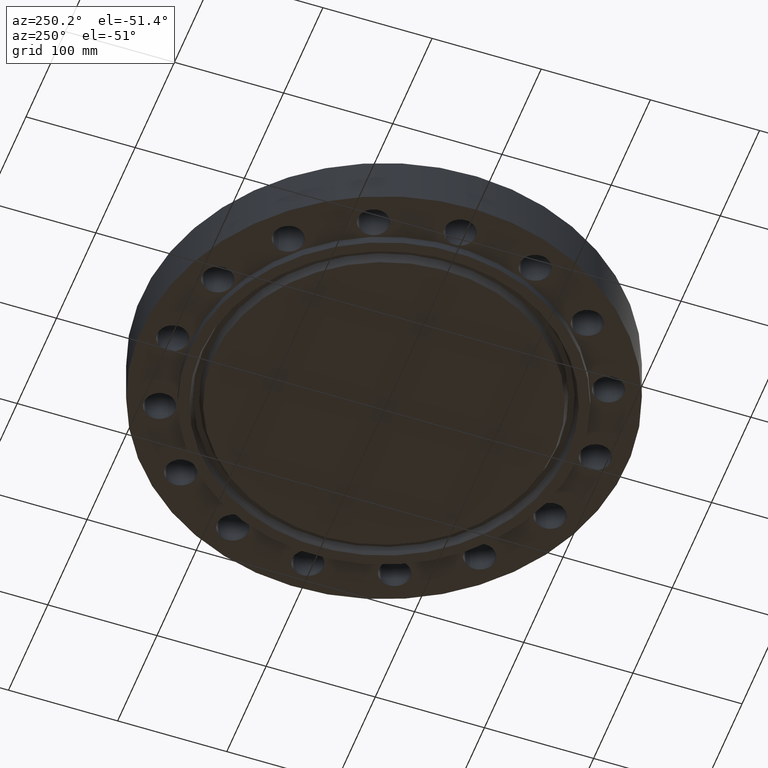
[diagram: clean part render]
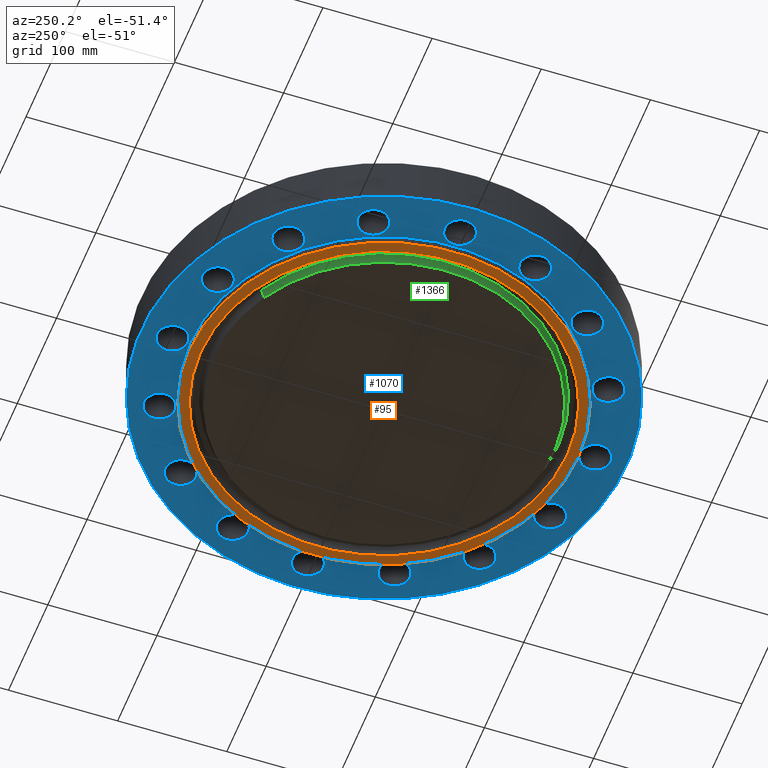
[diagram: same view with three faces highlighted in distinct colors, each labeled with its STEP entity id]
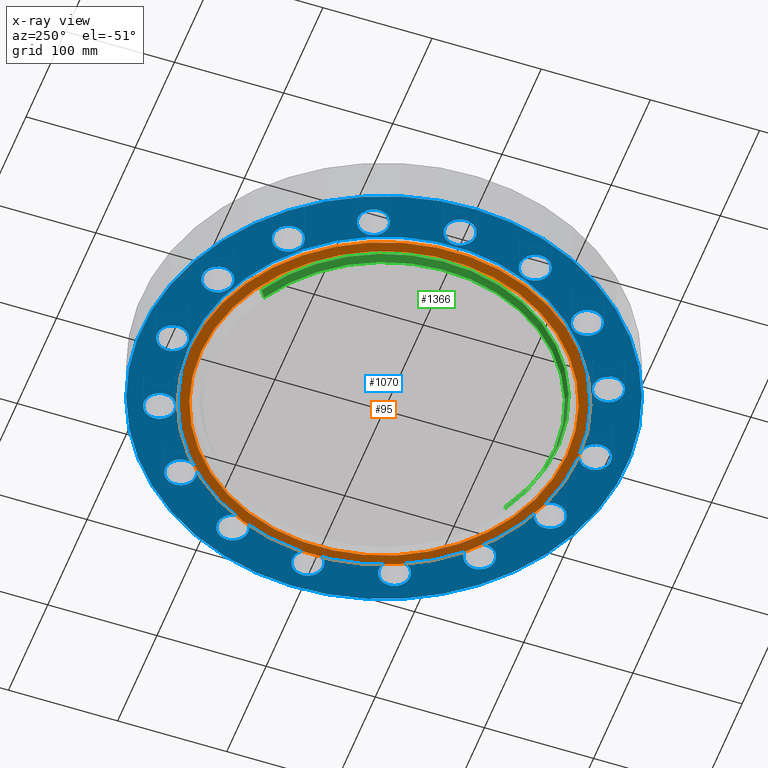
[diagram: x-ray of the same camera — body ghosted, the three highlighted faces saturated]
A machine part, auxiliary view with three faces highlighted in distinct colors.
The next image is the same camera in x-ray (body ghosted, the three faces saturated) — at least one of them is partly hidden behind the body in this view.
Their STEP definitions:

[orange] entity #95 — the highlighted planar face has unit normal (0, 0, -1).
#38=AXIS2_PLACEMENT_3D('Plane Axis2P3D',#35,#36,#37) ;
#61=AXIS2_PLACEMENT_3D('Circle Axis2P3D',#59,#60,$) ;
#70=AXIS2_PLACEMENT_3D('Circle Axis2P3D',#68,#69,$) ;
#79=AXIS2_PLACEMENT_3D('Circle Axis2P3D',#77,#78,$) ;
#88=AXIS2_PLACEMENT_3D('Circle Axis2P3D',#86,#87,$) ;
#35=CARTESIAN_POINT('Axis2P3D Location',(0.,0.,-0.312500000001)) ;
#59=CARTESIAN_POINT('Axis2P3D Location',(0.,0.,-0.312500000001)) ;
#63=CARTESIAN_POINT('Vertex',(3.35597877024,6.14307793326,-0.312500000001)) ;
#65=CARTESIAN_POINT('Vertex',(-3.35597877024,-6.14307793326,-0.312500000001)) ;
#68=CARTESIAN_POINT('Axis2P3D Location',(0.,0.,-0.312500000001)) ;
#77=CARTESIAN_POINT('Axis2P3D Location',(-8.39223703654E-016,-1.1189649382E-015,-0.312500000001)) ;
#81=CARTESIAN_POINT('Vertex',(3.16871515486,-5.80029418458,-0.312500000001)) ;
#83=CARTESIAN_POINT('Vertex',(-3.16871515486,5.80029418458,-0.312500000001)) ;
#86=CARTESIAN_POINT('Axis2P3D Location',(-2.79741234551E-016,-5.59482469102E-016,-0.312500000001)) ;
#36=DIRECTION('Axis2P3D Direction',(0.,0.,-0.0393700787402)) ;
#37=DIRECTION('Axis2P3D XDirection',(0.0393700787402,0.,0.)) ;
#60=DIRECTION('Axis2P3D Direction',(0.,0.,-0.0393700787402)) ;
#69=DIRECTION('Axis2P3D Direction',(0.,0.,-0.0393700787402)) ;
#78=DIRECTION('Axis2P3D Direction',(0.,0.,-0.0393700787402)) ;
#87=DIRECTION('Axis2P3D Direction',(0.,0.,-0.0393700787402)) ;
#74=ORIENTED_EDGE('',*,*,#67,.T.) ;
#75=ORIENTED_EDGE('',*,*,#72,.T.) ;
#92=ORIENTED_EDGE('',*,*,#85,.F.) ;
#93=ORIENTED_EDGE('',*,*,#90,.F.) ;
#94=FACE_BOUND('',#91,.T.) ;
#95=ADVANCED_FACE('PartBody',(#76,#94),#39,.T.) ;
#62=CIRCLE('generated circle',#61,7.00000000003) ;
#71=CIRCLE('generated circle',#70,7.00000000003) ;
#80=CIRCLE('generated circle',#79,6.60940000003) ;
#89=CIRCLE('generated circle',#88,6.60940000003) ;
#67=EDGE_CURVE('',#64,#66,#62,.T.) ;
#72=EDGE_CURVE('',#66,#64,#71,.T.) ;
#85=EDGE_CURVE('',#82,#84,#80,.T.) ;
#90=EDGE_CURVE('',#84,#82,#89,.T.) ;
#73=EDGE_LOOP('',(#74,#75)) ;
#91=EDGE_LOOP('',(#92,#93)) ;
#76=FACE_OUTER_BOUND('',#73,.T.) ;
#39=PLANE('',#38) ;
#64=VERTEX_POINT('',#63) ;
#66=VERTEX_POINT('',#65) ;
#82=VERTEX_POINT('',#81) ;
#84=VERTEX_POINT('',#83) ;

[blue] entity #1070 — the highlighted planar face has unit normal (0, 0, -1).
#112=AXIS2_PLACEMENT_3D('Circle Axis2P3D',#110,#111,$) ;
#138=AXIS2_PLACEMENT_3D('Circle Axis2P3D',#136,#137,$) ;
#169=AXIS2_PLACEMENT_3D('Circle Axis2P3D',#167,#168,$) ;
#195=AXIS2_PLACEMENT_3D('Circle Axis2P3D',#193,#194,$) ;
#226=AXIS2_PLACEMENT_3D('Circle Axis2P3D',#224,#225,$) ;
#252=AXIS2_PLACEMENT_3D('Circle Axis2P3D',#250,#251,$) ;
#283=AXIS2_PLACEMENT_3D('Circle Axis2P3D',#281,#282,$) ;
#309=AXIS2_PLACEMENT_3D('Circle Axis2P3D',#307,#308,$) ;
#340=AXIS2_PLACEMENT_3D('Circle Axis2P3D',#338,#339,$) ;
#366=AXIS2_PLACEMENT_3D('Circle Axis2P3D',#364,#365,$) ;
#397=AXIS2_PLACEMENT_3D('Circle Axis2P3D',#395,#396,$) ;
#423=AXIS2_PLACEMENT_3D('Circle Axis2P3D',#421,#422,$) ;
#454=AXIS2_PLACEMENT_3D('Circle Axis2P3D',#452,#453,$) ;
#480=AXIS2_PLACEMENT_3D('Circle Axis2P3D',#478,#479,$) ;
#511=AXIS2_PLACEMENT_3D('Circle Axis2P3D',#509,#510,$) ;
#537=AXIS2_PLACEMENT_3D('Circle Axis2P3D',#535,#536,$) ;
#568=AXIS2_PLACEMENT_3D('Circle Axis2P3D',#566,#567,$) ;
#594=AXIS2_PLACEMENT_3D('Circle Axis2P3D',#592,#593,$) ;
#625=AXIS2_PLACEMENT_3D('Circle Axis2P3D',#623,#624,$) ;
#651=AXIS2_PLACEMENT_3D('Circle Axis2P3D',#649,#650,$) ;
#682=AXIS2_PLACEMENT_3D('Circle Axis2P3D',#680,#681,$) ;
#708=AXIS2_PLACEMENT_3D('Circle Axis2P3D',#706,#707,$) ;
#739=AXIS2_PLACEMENT_3D('Circle Axis2P3D',#737,#738,$) ;
#765=AXIS2_PLACEMENT_3D('Circle Axis2P3D',#763,#764,$) ;
#796=AXIS2_PLACEMENT_3D('Circle Axis2P3D',#794,#795,$) ;
#822=AXIS2_PLACEMENT_3D('Circle Axis2P3D',#820,#821,$) ;
#853=AXIS2_PLACEMENT_3D('Circle Axis2P3D',#851,#852,$) ;
#879=AXIS2_PLACEMENT_3D('Circle Axis2P3D',#877,#878,$) ;
#910=AXIS2_PLACEMENT_3D('Circle Axis2P3D',#908,#909,$) ;
#936=AXIS2_PLACEMENT_3D('Circle Axis2P3D',#934,#935,$) ;
#954=AXIS2_PLACEMENT_3D('Plane Axis2P3D',#951,#952,#953) ;
#958=AXIS2_PLACEMENT_3D('Circle Axis2P3D',#956,#957,$) ;
#967=AXIS2_PLACEMENT_3D('Circle Axis2P3D',#965,#966,$) ;
#976=AXIS2_PLACEMENT_3D('Circle Axis2P3D',#974,#975,$) ;
#985=AXIS2_PLACEMENT_3D('Circle Axis2P3D',#983,#984,$) ;
#994=AXIS2_PLACEMENT_3D('Circle Axis2P3D',#992,#993,$) ;
#1003=AXIS2_PLACEMENT_3D('Circle Axis2P3D',#1001,#1002,$) ;
#105=CARTESIAN_POINT('Vertex',(3.26925609135,6.60847149573,0.)) ;
#110=CARTESIAN_POINT('Axis2P3D Location',(2.9179611718,7.04458143543,0.)) ;
#114=CARTESIAN_POINT('Vertex',(2.56666625224,7.48069137512,0.)) ;
#136=CARTESIAN_POINT('Axis2P3D Location',(2.9179611718,7.04458143543,0.)) ;
#162=CARTESIAN_POINT('Vertex',(-0.491446234661,-7.35652169841,0.)) ;
#167=CARTESIAN_POINT('Axis2P3D Location',(9.33793184354E-016,-7.62500000003,0.)) ;
#171=CARTESIAN_POINT('Vertex',(0.491446234661,-7.89347830165,0.)) ;
#193=CARTESIAN_POINT('Axis2P3D Location',(9.33793184354E-016,-7.62500000003,0.)) ;
#219=CARTESIAN_POINT('Vertex',(-2.36118185628,6.98460815954,0.)) ;
#224=CARTESIAN_POINT('Axis2P3D Location',(-2.9179611718,7.04458143543,0.)) ;
#228=CARTESIAN_POINT('Vertex',(-3.47474048731,7.10455471131,0.)) ;
#250=CARTESIAN_POINT('Axis2P3D Location',(-2.9179611718,7.04458143543,0.)) ;
#276=CARTESIAN_POINT('Vertex',(2.36118185628,-6.98460815954,0.)) ;
#281=CARTESIAN_POINT('Axis2P3D Location',(2.9179611718,-7.04458143543,0.)) ;
#285=CARTESIAN_POINT('Vertex',(3.47474048731,-7.10455471131,0.)) ;
#307=CARTESIAN_POINT('Axis2P3D Location',(2.9179611718,-7.04458143543,0.)) ;
#333=CARTESIAN_POINT('Vertex',(-4.85434141378,5.54935134401,0.)) ;
#338=CARTESIAN_POINT('Axis2P3D Location',(-5.39168920657,5.39168920657,0.)) ;
#342=CARTESIAN_POINT('Vertex',(-5.92903699936,5.23402706913,0.)) ;
#364=CARTESIAN_POINT('Axis2P3D Location',(-5.39168920657,5.39168920657,0.)) ;
#390=CARTESIAN_POINT('Vertex',(4.85434141378,-5.54935134401,0.)) ;
#395=CARTESIAN_POINT('Axis2P3D Location',(5.39168920657,-5.39168920657,0.)) ;
#399=CARTESIAN_POINT('Vertex',(5.92903699936,-5.23402706913,0.)) ;
#421=CARTESIAN_POINT('Axis2P3D Location',(5.39168920657,-5.39168920657,0.)) ;
#447=CARTESIAN_POINT('Vertex',(-6.60847149573,3.26925609135,-1.67844740731E-015)) ;
#452=CARTESIAN_POINT('Axis2P3D Location',(-7.04458143543,2.9179611718,-1.67844740731E-015)) ;
#456=CARTESIAN_POINT('Vertex',(-7.48069137512,2.56666625224,0.)) ;
#478=CARTESIAN_POINT('Axis2P3D Location',(-7.04458143543,2.9179611718,-1.67844740731E-015)) ;
#504=CARTESIAN_POINT('Vertex',(6.60847149573,-3.26925609135,0.)) ;
#509=CARTESIAN_POINT('Axis2P3D Location',(7.04458143543,-2.9179611718,0.)) ;
#513=CARTESIAN_POINT('Vertex',(7.48069137512,-2.56666625224,0.)) ;
#535=CARTESIAN_POINT('Axis2P3D Location',(7.04458143543,-2.9179611718,0.)) ;
#561=CARTESIAN_POINT('Vertex',(-7.35652169841,0.491446234661,0.)) ;
#566=CARTESIAN_POINT('Axis2P3D Location',(-7.62500000003,-2.81724838326E-016,0.)) ;
#570=CARTESIAN_POINT('Vertex',(-7.89347830165,-0.491446234661,0.)) ;
#592=CARTESIAN_POINT('Axis2P3D Location',(-7.62500000003,-2.81724838326E-016,0.)) ;
#618=CARTESIAN_POINT('Vertex',(7.35652169841,-0.491446234661,0.)) ;
#623=CARTESIAN_POINT('Axis2P3D Location',(7.62500000003,-6.52068346028E-016,0.)) ;
#627=CARTESIAN_POINT('Vertex',(7.89347830165,0.491446234661,0.)) ;
#649=CARTESIAN_POINT('Axis2P3D Location',(7.62500000003,-6.52068346028E-016,0.)) ;
#675=CARTESIAN_POINT('Vertex',(-6.98460815954,-2.36118185628,0.)) ;
#680=CARTESIAN_POINT('Axis2P3D Location',(-7.04458143543,-2.9179611718,0.)) ;
#684=CARTESIAN_POINT('Vertex',(-7.10455471131,-3.47474048731,0.)) ;
#706=CARTESIAN_POINT('Axis2P3D Location',(-7.04458143543,-2.9179611718,0.)) ;
#732=CARTESIAN_POINT('Vertex',(6.98460815954,2.36118185628,0.)) ;
#737=CARTESIAN_POINT('Axis2P3D Location',(7.04458143543,2.9179611718,0.)) ;
#741=CARTESIAN_POINT('Vertex',(7.10455471131,3.47474048731,0.)) ;
#763=CARTESIAN_POINT('Axis2P3D Location',(7.04458143543,2.9179611718,0.)) ;
#789=CARTESIAN_POINT('Vertex',(-5.54935134401,-4.85434141378,0.)) ;
#794=CARTESIAN_POINT('Axis2P3D Location',(-5.39168920657,-5.39168920657,0.)) ;
#798=CARTESIAN_POINT('Vertex',(-5.23402706913,-5.92903699936,0.)) ;
#820=CARTESIAN_POINT('Axis2P3D Location',(-5.39168920657,-5.39168920657,0.)) ;
#846=CARTESIAN_POINT('Vertex',(5.54935134401,4.85434141378,0.)) ;
#851=CARTESIAN_POINT('Axis2P3D Location',(5.39168920657,5.39168920657,0.)) ;
#855=CARTESIAN_POINT('Vertex',(5.23402706913,5.92903699936,0.)) ;
#877=CARTESIAN_POINT('Axis2P3D Location',(5.39168920657,5.39168920657,0.)) ;
#903=CARTESIAN_POINT('Vertex',(-3.26925609135,-6.60847149573,0.)) ;
#908=CARTESIAN_POINT('Axis2P3D Location',(-2.9179611718,-7.04458143543,0.)) ;
#912=CARTESIAN_POINT('Vertex',(-2.56666625224,-7.48069137512,0.)) ;
#934=CARTESIAN_POINT('Axis2P3D Location',(-2.9179611718,-7.04458143543,0.)) ;
#951=CARTESIAN_POINT('Axis2P3D Location',(0.,7.00000000003,0.)) ;
#956=CARTESIAN_POINT('Axis2P3D Location',(0.,0.,0.)) ;
#960=CARTESIAN_POINT('Vertex',(-4.1949734628,-7.67884741657,1.39870617276E-015)) ;
#962=CARTESIAN_POINT('Vertex',(4.1949734628,7.67884741657,1.39870617276E-015)) ;
#965=CARTESIAN_POINT('Axis2P3D Location',(0.,0.,0.)) ;
#974=CARTESIAN_POINT('Axis2P3D Location',(-2.09805925913E-016,7.62500000003,0.)) ;
#978=CARTESIAN_POINT('Vertex',(0.491446234661,7.35652169841,0.)) ;
#980=CARTESIAN_POINT('Vertex',(-0.491446234661,7.89347830165,0.)) ;
#983=CARTESIAN_POINT('Axis2P3D Location',(-8.74191357973E-017,7.62500000003,0.)) ;
#992=CARTESIAN_POINT('Axis2P3D Location',(0.,0.,0.)) ;
#996=CARTESIAN_POINT('Vertex',(3.35597877024,6.14307793326,8.39223703654E-016)) ;
#998=CARTESIAN_POINT('Vertex',(-3.35597877024,-6.14307793326,8.39223703654E-016)) ;
#1001=CARTESIAN_POINT('Axis2P3D Location',(0.,0.,0.)) ;
#111=DIRECTION('Axis2P3D Direction',(0.,-0.,-0.0393700787402)) ;
#137=DIRECTION('Axis2P3D Direction',(0.,-0.,-0.0393700787402)) ;
#168=DIRECTION('Axis2P3D Direction',(-0.,0.,-0.0393700787402)) ;
#194=DIRECTION('Axis2P3D Direction',(-0.,0.,-0.0393700787402)) ;
#225=DIRECTION('Axis2P3D Direction',(0.,0.,-0.0393700787402)) ;
#251=DIRECTION('Axis2P3D Direction',(0.,0.,-0.0393700787402)) ;
#282=DIRECTION('Axis2P3D Direction',(-0.,0.,-0.0393700787402)) ;
#308=DIRECTION('Axis2P3D Direction',(-0.,0.,-0.0393700787402)) ;
#339=DIRECTION('Axis2P3D Direction',(0.,0.,-0.0393700787402)) ;
#365=DIRECTION('Axis2P3D Direction',(0.,0.,-0.0393700787402)) ;
#396=DIRECTION('Axis2P3D Direction',(-0.,0.,-0.0393700787402)) ;
#422=DIRECTION('Axis2P3D Direction',(-0.,0.,-0.0393700787402)) ;
#453=DIRECTION('Axis2P3D Direction',(0.,0.,-0.0393700787402)) ;
#479=DIRECTION('Axis2P3D Direction',(0.,0.,-0.0393700787402)) ;
#510=DIRECTION('Axis2P3D Direction',(-0.,0.,-0.0393700787402)) ;
#536=DIRECTION('Axis2P3D Direction',(-0.,0.,-0.0393700787402)) ;
#567=DIRECTION('Axis2P3D Direction',(0.,0.,-0.0393700787402)) ;
#593=DIRECTION('Axis2P3D Direction',(0.,0.,-0.0393700787402)) ;
#624=DIRECTION('Axis2P3D Direction',(0.,-0.,-0.0393700787402)) ;
#650=DIRECTION('Axis2P3D Direction',(0.,-0.,-0.0393700787402)) ;
#681=DIRECTION('Axis2P3D Direction',(0.,0.,-0.0393700787402)) ;
#707=DIRECTION('Axis2P3D Direction',(0.,0.,-0.0393700787402)) ;
#738=DIRECTION('Axis2P3D Direction',(0.,-0.,-0.0393700787402)) ;
#764=DIRECTION('Axis2P3D Direction',(0.,-0.,-0.0393700787402)) ;
#795=DIRECTION('Axis2P3D Direction',(0.,0.,-0.0393700787402)) ;
#821=DIRECTION('Axis2P3D Direction',(0.,0.,-0.0393700787402)) ;
#852=DIRECTION('Axis2P3D Direction',(0.,-0.,-0.0393700787402)) ;
#878=DIRECTION('Axis2P3D Direction',(0.,-0.,-0.0393700787402)) ;
#909=DIRECTION('Axis2P3D Direction',(0.,0.,-0.0393700787402)) ;
#935=DIRECTION('Axis2P3D Direction',(0.,0.,-0.0393700787402)) ;
#952=DIRECTION('Axis2P3D Direction',(0.,0.,-0.0393700787402)) ;
#953=DIRECTION('Axis2P3D XDirection',(0.0393700787402,0.,0.)) ;
#957=DIRECTION('Axis2P3D Direction',(0.,0.,-0.0393700787402)) ;
#966=DIRECTION('Axis2P3D Direction',(0.,0.,-0.0393700787402)) ;
#975=DIRECTION('Axis2P3D Direction',(0.,0.,-0.0393700787402)) ;
#984=DIRECTION('Axis2P3D Direction',(0.,0.,-0.0393700787402)) ;
#993=DIRECTION('Axis2P3D Direction',(0.,0.,-0.0393700787402)) ;
#1002=DIRECTION('Axis2P3D Direction',(0.,0.,-0.0393700787402)) ;
#971=ORIENTED_EDGE('',*,*,#964,.T.) ;
#972=ORIENTED_EDGE('',*,*,#969,.T.) ;
#989=ORIENTED_EDGE('',*,*,#982,.F.) ;
#990=ORIENTED_EDGE('',*,*,#987,.F.) ;
#1007=ORIENTED_EDGE('',*,*,#1000,.F.) ;
#1008=ORIENTED_EDGE('',*,*,#1005,.F.) ;
#1011=ORIENTED_EDGE('',*,*,#140,.F.) ;
#1012=ORIENTED_EDGE('',*,*,#116,.F.) ;
#1015=ORIENTED_EDGE('',*,*,#881,.F.) ;
#1016=ORIENTED_EDGE('',*,*,#857,.F.) ;
#1019=ORIENTED_EDGE('',*,*,#767,.F.) ;
#1020=ORIENTED_EDGE('',*,*,#743,.F.) ;
#1023=ORIENTED_EDGE('',*,*,#653,.F.) ;
#1024=ORIENTED_EDGE('',*,*,#629,.F.) ;
#1027=ORIENTED_EDGE('',*,*,#539,.F.) ;
#1028=ORIENTED_EDGE('',*,*,#515,.F.) ;
#1031=ORIENTED_EDGE('',*,*,#425,.F.) ;
#1032=ORIENTED_EDGE('',*,*,#401,.F.) ;
#1035=ORIENTED_EDGE('',*,*,#311,.F.) ;
#1036=ORIENTED_EDGE('',*,*,#287,.F.) ;
#1039=ORIENTED_EDGE('',*,*,#197,.F.) ;
#1040=ORIENTED_EDGE('',*,*,#173,.F.) ;
#1043=ORIENTED_EDGE('',*,*,#938,.F.) ;
#1044=ORIENTED_EDGE('',*,*,#914,.F.) ;
#1047=ORIENTED_EDGE('',*,*,#824,.F.) ;
#1048=ORIENTED_EDGE('',*,*,#800,.F.) ;
#1051=ORIENTED_EDGE('',*,*,#710,.F.) ;
#1052=ORIENTED_EDGE('',*,*,#686,.F.) ;
#1055=ORIENTED_EDGE('',*,*,#596,.F.) ;
#1056=ORIENTED_EDGE('',*,*,#572,.F.) ;
#1059=ORIENTED_EDGE('',*,*,#482,.F.) ;
#1060=ORIENTED_EDGE('',*,*,#458,.F.) ;
#1063=ORIENTED_EDGE('',*,*,#368,.F.) ;
#1064=ORIENTED_EDGE('',*,*,#344,.F.) ;
#1067=ORIENTED_EDGE('',*,*,#254,.F.) ;
#1068=ORIENTED_EDGE('',*,*,#230,.F.) ;
#991=FACE_BOUND('',#988,.T.) ;
#1009=FACE_BOUND('',#1006,.T.) ;
#1013=FACE_BOUND('',#1010,.T.) ;
#1017=FACE_BOUND('',#1014,.T.) ;
#1021=FACE_BOUND('',#1018,.T.) ;
#1025=FACE_BOUND('',#1022,.T.) ;
#1029=FACE_BOUND('',#1026,.T.) ;
#1033=FACE_BOUND('',#1030,.T.) ;
#1037=FACE_BOUND('',#1034,.T.) ;
#1041=FACE_BOUND('',#1038,.T.) ;
#1045=FACE_BOUND('',#1042,.T.) ;
#1049=FACE_BOUND('',#1046,.T.) ;
#1053=FACE_BOUND('',#1050,.T.) ;
#1057=FACE_BOUND('',#1054,.T.) ;
#1061=FACE_BOUND('',#1058,.T.) ;
#1065=FACE_BOUND('',#1062,.T.) ;
#1069=FACE_BOUND('',#1066,.T.) ;
#1070=ADVANCED_FACE('PartBody',(#973,#991,#1009,#1013,#1017,#1021,#1025,#1029,#1033,#1037,#1041,#1045,#1049,#1053,#1057,#1061,#1065,#1069),#955,.T.) ;
#113=CIRCLE('generated circle',#112,0.560000000002) ;
#139=CIRCLE('generated circle',#138,0.560000000002) ;
#170=CIRCLE('generated circle',#169,0.560000000002) ;
#196=CIRCLE('generated circle',#195,0.560000000002) ;
#227=CIRCLE('generated circle',#226,0.560000000002) ;
#253=CIRCLE('generated circle',#252,0.560000000002) ;
#284=CIRCLE('generated circle',#283,0.560000000002) ;
#310=CIRCLE('generated circle',#309,0.560000000002) ;
#341=CIRCLE('generated circle',#340,0.560000000002) ;
#367=CIRCLE('generated circle',#366,0.560000000002) ;
#398=CIRCLE('generated circle',#397,0.560000000002) ;
#424=CIRCLE('generated circle',#423,0.560000000002) ;
#455=CIRCLE('generated circle',#454,0.560000000002) ;
#481=CIRCLE('generated circle',#480,0.560000000002) ;
#512=CIRCLE('generated circle',#511,0.560000000002) ;
#538=CIRCLE('generated circle',#537,0.560000000002) ;
#569=CIRCLE('generated circle',#568,0.560000000002) ;
#595=CIRCLE('generated circle',#594,0.560000000002) ;
#626=CIRCLE('generated circle',#625,0.560000000002) ;
#652=CIRCLE('generated circle',#651,0.560000000002) ;
#683=CIRCLE('generated circle',#682,0.560000000002) ;
#709=CIRCLE('generated circle',#708,0.560000000002) ;
#740=CIRCLE('generated circle',#739,0.560000000002) ;
#766=CIRCLE('generated circle',#765,0.560000000002) ;
#797=CIRCLE('generated circle',#796,0.560000000002) ;
#823=CIRCLE('generated circle',#822,0.560000000002) ;
#854=CIRCLE('generated circle',#853,0.560000000002) ;
#880=CIRCLE('generated circle',#879,0.560000000002) ;
#911=CIRCLE('generated circle',#910,0.560000000002) ;
#937=CIRCLE('generated circle',#936,0.560000000002) ;
#959=CIRCLE('generated circle',#958,8.75000000003) ;
#968=CIRCLE('generated circle',#967,8.75000000003) ;
#977=CIRCLE('generated circle',#976,0.560000000002) ;
#986=CIRCLE('generated circle',#985,0.560000000002) ;
#995=CIRCLE('generated circle',#994,7.00000000003) ;
#1004=CIRCLE('generated circle',#1003,7.00000000003) ;
#116=EDGE_CURVE('',#106,#115,#113,.T.) ;
#140=EDGE_CURVE('',#115,#106,#139,.T.) ;
#173=EDGE_CURVE('',#163,#172,#170,.T.) ;
#197=EDGE_CURVE('',#172,#163,#196,.T.) ;
#230=EDGE_CURVE('',#220,#229,#227,.T.) ;
#254=EDGE_CURVE('',#229,#220,#253,.T.) ;
#287=EDGE_CURVE('',#277,#286,#284,.T.) ;
#311=EDGE_CURVE('',#286,#277,#310,.T.) ;
#344=EDGE_CURVE('',#334,#343,#341,.T.) ;
#368=EDGE_CURVE('',#343,#334,#367,.T.) ;
#401=EDGE_CURVE('',#391,#400,#398,.T.) ;
#425=EDGE_CURVE('',#400,#391,#424,.T.) ;
#458=EDGE_CURVE('',#448,#457,#455,.T.) ;
#482=EDGE_CURVE('',#457,#448,#481,.T.) ;
#515=EDGE_CURVE('',#505,#514,#512,.T.) ;
#539=EDGE_CURVE('',#514,#505,#538,.T.) ;
#572=EDGE_CURVE('',#562,#571,#569,.T.) ;
#596=EDGE_CURVE('',#571,#562,#595,.T.) ;
#629=EDGE_CURVE('',#619,#628,#626,.T.) ;
#653=EDGE_CURVE('',#628,#619,#652,.T.) ;
#686=EDGE_CURVE('',#676,#685,#683,.T.) ;
#710=EDGE_CURVE('',#685,#676,#709,.T.) ;
#743=EDGE_CURVE('',#733,#742,#740,.T.) ;
#767=EDGE_CURVE('',#742,#733,#766,.T.) ;
#800=EDGE_CURVE('',#790,#799,#797,.T.) ;
#824=EDGE_CURVE('',#799,#790,#823,.T.) ;
#857=EDGE_CURVE('',#847,#856,#854,.T.) ;
#881=EDGE_CURVE('',#856,#847,#880,.T.) ;
#914=EDGE_CURVE('',#904,#913,#911,.T.) ;
#938=EDGE_CURVE('',#913,#904,#937,.T.) ;
#964=EDGE_CURVE('',#961,#963,#959,.T.) ;
#969=EDGE_CURVE('',#963,#961,#968,.T.) ;
#982=EDGE_CURVE('',#979,#981,#977,.T.) ;
#987=EDGE_CURVE('',#981,#979,#986,.T.) ;
#1000=EDGE_CURVE('',#997,#999,#995,.T.) ;
#1005=EDGE_CURVE('',#999,#997,#1004,.T.) ;
#970=EDGE_LOOP('',(#971,#972)) ;
#988=EDGE_LOOP('',(#989,#990)) ;
#1006=EDGE_LOOP('',(#1007,#1008)) ;
#1010=EDGE_LOOP('',(#1011,#1012)) ;
#1014=EDGE_LOOP('',(#1015,#1016)) ;
#1018=EDGE_LOOP('',(#1019,#1020)) ;
#1022=EDGE_LOOP('',(#1023,#1024)) ;
#1026=EDGE_LOOP('',(#1027,#1028)) ;
#1030=EDGE_LOOP('',(#1031,#1032)) ;
#1034=EDGE_LOOP('',(#1035,#1036)) ;
#1038=EDGE_LOOP('',(#1039,#1040)) ;
#1042=EDGE_LOOP('',(#1043,#1044)) ;
#1046=EDGE_LOOP('',(#1047,#1048)) ;
#1050=EDGE_LOOP('',(#1051,#1052)) ;
#1054=EDGE_LOOP('',(#1055,#1056)) ;
#1058=EDGE_LOOP('',(#1059,#1060)) ;
#1062=EDGE_LOOP('',(#1063,#1064)) ;
#1066=EDGE_LOOP('',(#1067,#1068)) ;
#973=FACE_OUTER_BOUND('',#970,.T.) ;
#955=PLANE('',#954) ;
#106=VERTEX_POINT('',#105) ;
#115=VERTEX_POINT('',#114) ;
#163=VERTEX_POINT('',#162) ;
#172=VERTEX_POINT('',#171) ;
#220=VERTEX_POINT('',#219) ;
#229=VERTEX_POINT('',#228) ;
#277=VERTEX_POINT('',#276) ;
#286=VERTEX_POINT('',#285) ;
#334=VERTEX_POINT('',#333) ;
#343=VERTEX_POINT('',#342) ;
#391=VERTEX_POINT('',#390) ;
#400=VERTEX_POINT('',#399) ;
#448=VERTEX_POINT('',#447) ;
#457=VERTEX_POINT('',#456) ;
#505=VERTEX_POINT('',#504) ;
#514=VERTEX_POINT('',#513) ;
#562=VERTEX_POINT('',#561) ;
#571=VERTEX_POINT('',#570) ;
#619=VERTEX_POINT('',#618) ;
#628=VERTEX_POINT('',#627) ;
#676=VERTEX_POINT('',#675) ;
#685=VERTEX_POINT('',#684) ;
#733=VERTEX_POINT('',#732) ;
#742=VERTEX_POINT('',#741) ;
#790=VERTEX_POINT('',#789) ;
#799=VERTEX_POINT('',#798) ;
#847=VERTEX_POINT('',#846) ;
#856=VERTEX_POINT('',#855) ;
#904=VERTEX_POINT('',#903) ;
#913=VERTEX_POINT('',#912) ;
#961=VERTEX_POINT('',#960) ;
#963=VERTEX_POINT('',#962) ;
#979=VERTEX_POINT('',#978) ;
#981=VERTEX_POINT('',#980) ;
#997=VERTEX_POINT('',#996) ;
#999=VERTEX_POINT('',#998) ;

[green] entity #1366 — the highlighted conical surface has half-angle 23 deg.
#51=AXIS2_PLACEMENT_3D('Circle Axis2P3D',#49,#50,$) ;
#1328=AXIS2_PLACEMENT_3D('Circle Axis2P3D',#1326,#1327,$) ;
#1341=AXIS2_PLACEMENT_3D('Cone Axis2P3D',#1338,#1339,#1340) ;
#44=CARTESIAN_POINT('Vertex',(-2.94396046236,5.38888347957,-0.312500000001)) ;
#46=CARTESIAN_POINT('Vertex',(2.94396046236,-5.38888347957,-0.312500000001)) ;
#49=CARTESIAN_POINT('Axis2P3D Location',(-5.59482469102E-016,0.,-0.312500000001)) ;
#1304=CARTESIAN_POINT('Vertex',(3.00367463732,-5.49818954363,-0.0190701156784)) ;
#1311=CARTESIAN_POINT('Vertex',(-3.00367463732,5.49818954363,-0.0190701156784)) ;
#1326=CARTESIAN_POINT('Axis2P3D Location',(0.,0.,-0.0190701156784)) ;
#1338=CARTESIAN_POINT('Axis2P3D Location',(0.,0.,-0.372500000001)) ;
#1343=CARTESIAN_POINT('Line Origine',(-2.97381754984,5.4435365116,-0.16578505784)) ;
#1348=CARTESIAN_POINT('Line Origine',(2.97381754984,-5.4435365116,-0.16578505784)) ;
#50=DIRECTION('Axis2P3D Direction',(0.,0.,-0.0393700787402)) ;
#1327=DIRECTION('Axis2P3D Direction',(0.,0.,0.0393700787402)) ;
#1339=DIRECTION('Axis2P3D Direction',(0.,0.,0.0393700787402)) ;
#1340=DIRECTION('Axis2P3D XDirection',(-0.0188750212049,0.0345504945626,0.)) ;
#1344=DIRECTION('Vector Direction',(-0.00737505833565,0.0134999537303,0.0362403485611)) ;
#1349=DIRECTION('Vector Direction',(0.00737505833565,-0.0134999537303,0.0362403485611)) ;
#1345=VECTOR('Line Direction',#1344,0.0393700787402) ;
#1350=VECTOR('Line Direction',#1349,0.0393700787402) ;
#1361=ORIENTED_EDGE('',*,*,#1352,.F.) ;
#1362=ORIENTED_EDGE('',*,*,#1330,.F.) ;
#1363=ORIENTED_EDGE('',*,*,#1347,.T.) ;
#1364=ORIENTED_EDGE('',*,*,#53,.F.) ;
#1366=ADVANCED_FACE('PartBody',(#1365),#1342,.T.) ;
#52=CIRCLE('generated circle',#51,6.14060000002) ;
#1329=CIRCLE('generated circle',#1328,6.26515359624) ;
#1342=CONICAL_SURFACE('Cone',#1341,6.11513151105,0.401425727959) ;
#53=EDGE_CURVE('',#47,#45,#52,.T.) ;
#1330=EDGE_CURVE('',#1312,#1305,#1329,.T.) ;
#1347=EDGE_CURVE('',#1312,#45,#1346,.F.) ;
#1352=EDGE_CURVE('',#1305,#47,#1351,.F.) ;
#1360=EDGE_LOOP('',(#1361,#1362,#1363,#1364)) ;
#1365=FACE_OUTER_BOUND('',#1360,.T.) ;
#1346=LINE('Line',#1343,#1345) ;
#1351=LINE('Line',#1348,#1350) ;
#45=VERTEX_POINT('',#44) ;
#47=VERTEX_POINT('',#46) ;
#1305=VERTEX_POINT('',#1304) ;
#1312=VERTEX_POINT('',#1311) ;